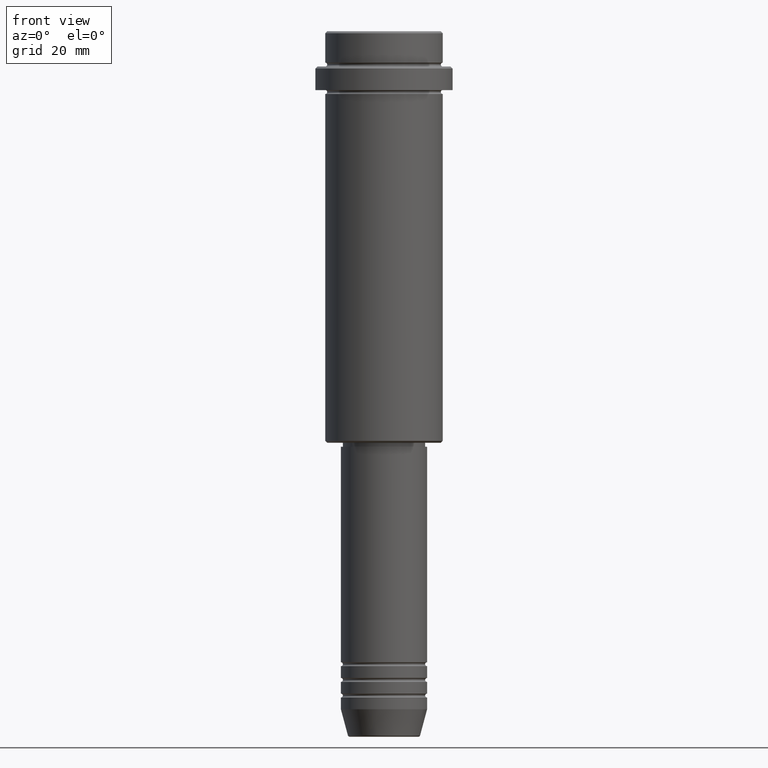
[diagram: clean part render]
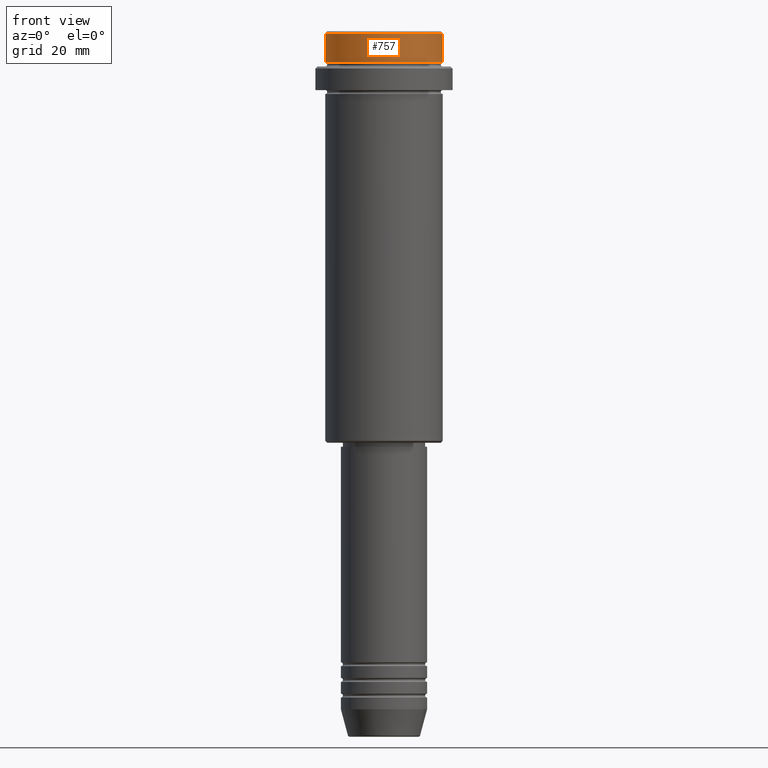
[diagram: same view with one face highlighted and labeled with its STEP entity id]
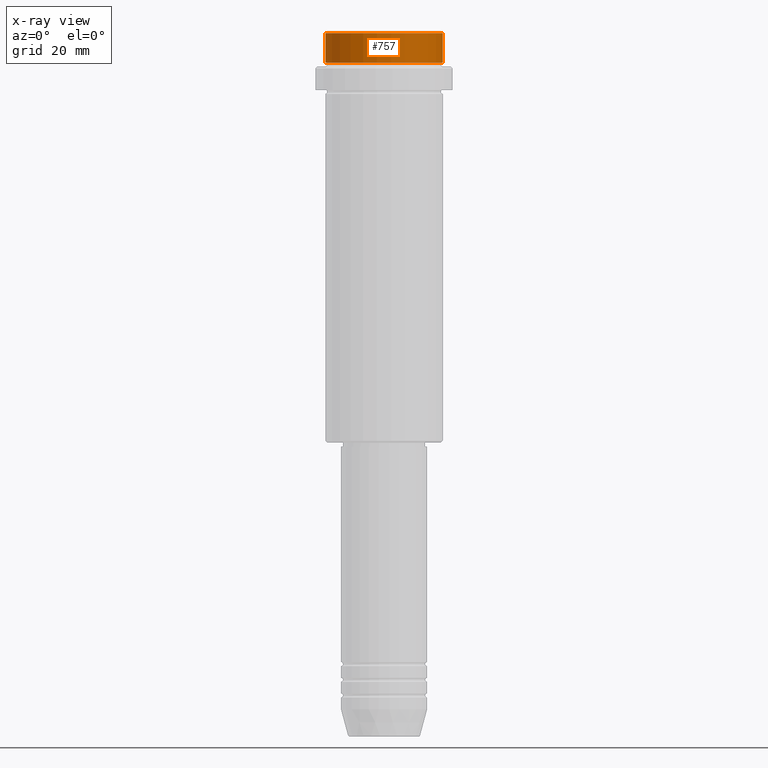
[diagram: x-ray of the same camera — body ghosted, the highlighted face saturated]
A machine part, front view. The second image highlights one B-rep face of the part: STEP entity #757.
The next image is the same camera in x-ray: the body ghosted, the highlighted face saturated — about 0% of this face is hidden behind the body in this view.
In plain terms, the highlighted cylindrical surface (partial cylindrical patch) has radius 15 mm, axis along (-0, -0, 1).
Its self-contained STEP definition (entity closure, byte-faithful):
#34 = DIRECTION ( 'NONE',  ( 1.000000000000000000, 0.000000000000000000, 0.000000000000000000 ) ) ;
#74 = ORIENTED_EDGE ( 'NONE', *, *, #1166, .T. ) ;
#87 = EDGE_CURVE ( 'NONE', #840, #1182, #990, .T. ) ;
#111 = DIRECTION ( 'NONE',  ( -0.000000000000000000, -0.000000000000000000, 1.000000000000000000 ) ) ;
#116 = EDGE_CURVE ( 'NONE', #1182, #512, #141, .T. ) ;
#137 = ORIENTED_EDGE ( 'NONE', *, *, #116, .T. ) ;
#141 = CIRCLE ( 'NONE', #972, 15.00000000000000000 ) ;
#184 = CARTESIAN_POINT ( 'NONE',  ( 0.000000000000000000, 0.000000000000000000, -0.4999999999999831246 ) ) ;
#198 = AXIS2_PLACEMENT_3D ( 'NONE', #1073, #1000, #34 ) ;
#204 = DIRECTION ( 'NONE',  ( 0.000000000000000000, 0.000000000000000000, -1.000000000000000000 ) ) ;
#209 = CARTESIAN_POINT ( 'NONE',  ( 15.00000000000000000, 0.000000000000000000, 0.000000000000000000 ) ) ;
#215 = VECTOR ( 'NONE', #1298, 1000.000000000000000 ) ;
#221 = CIRCLE ( 'NONE', #1037, 15.00000000000000000 ) ;
#260 = ORIENTED_EDGE ( 'NONE', *, *, #672, .F. ) ;
#262 = VECTOR ( 'NONE', #111, 1000.000000000000000 ) ;
#350 = VERTEX_POINT ( 'NONE', #1128 ) ;
#425 = DIRECTION ( 'NONE',  ( 1.000000000000000000, 0.000000000000000000, 0.000000000000000000 ) ) ;
#490 = CARTESIAN_POINT ( 'NONE',  ( -15.00000000000000000, 1.836970198721029589E-15, -0.4999999999999831246 ) ) ;
#512 = VERTEX_POINT ( 'NONE', #490 ) ;
#631 = CARTESIAN_POINT ( 'NONE',  ( 15.00000000000000000, 0.000000000000000000, -0.4999999999999831246 ) ) ;
#633 = FACE_OUTER_BOUND ( 'NONE', #925, .T. ) ;
#672 = EDGE_CURVE ( 'NONE', #350, #512, #1067, .T. ) ;
#757 = ADVANCED_FACE ( 'NONE', ( #633 ), #1180, .T. ) ;
#840 = VERTEX_POINT ( 'NONE', #1183 ) ;
#855 = CARTESIAN_POINT ( 'NONE',  ( -15.00000000000000000, 1.836970198721029589E-15, 0.000000000000000000 ) ) ;
#887 = CARTESIAN_POINT ( 'NONE',  ( 0.000000000000000000, 0.000000000000000000, -7.999999999999998224 ) ) ;
#925 = EDGE_LOOP ( 'NONE', ( #260, #74, #1349, #137 ) ) ;
#969 = DIRECTION ( 'NONE',  ( 1.000000000000000000, 0.000000000000000000, 0.000000000000000000 ) ) ;
#972 = AXIS2_PLACEMENT_3D ( 'NONE', #184, #204, #969 ) ;
#990 = LINE ( 'NONE', #209, #215 ) ;
#1000 = DIRECTION ( 'NONE',  ( -0.000000000000000000, -0.000000000000000000, 1.000000000000000000 ) ) ;
#1002 = DIRECTION ( 'NONE',  ( -0.000000000000000000, -0.000000000000000000, 1.000000000000000000 ) ) ;
#1037 = AXIS2_PLACEMENT_3D ( 'NONE', #887, #1002, #425 ) ;
#1067 = LINE ( 'NONE', #855, #262 ) ;
#1073 = CARTESIAN_POINT ( 'NONE',  ( 0.000000000000000000, 0.000000000000000000, 0.000000000000000000 ) ) ;
#1128 = CARTESIAN_POINT ( 'NONE',  ( -15.00000000000000000, 1.836970198721029589E-15, -7.999999999999998224 ) ) ;
#1166 = EDGE_CURVE ( 'NONE', #350, #840, #221, .T. ) ;
#1180 = CYLINDRICAL_SURFACE ( 'NONE', #198, 15.00000000000000000 ) ;
#1182 = VERTEX_POINT ( 'NONE', #631 ) ;
#1183 = CARTESIAN_POINT ( 'NONE',  ( 15.00000000000000000, 0.000000000000000000, -7.999999999999998224 ) ) ;
#1298 = DIRECTION ( 'NONE',  ( -0.000000000000000000, -0.000000000000000000, 1.000000000000000000 ) ) ;
#1349 = ORIENTED_EDGE ( 'NONE', *, *, #87, .T. ) ;